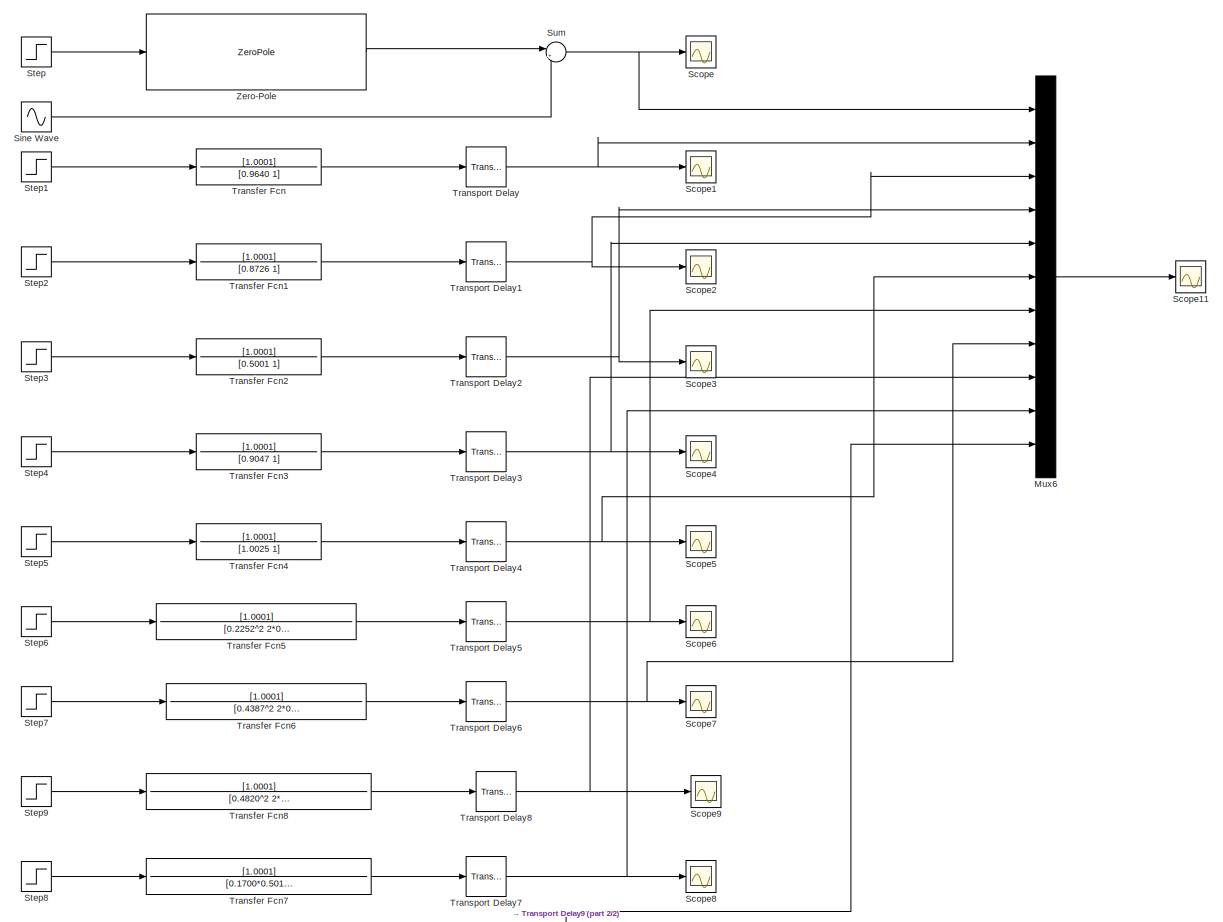
[diagram: root canvas - part 1/2, most of the canvas]
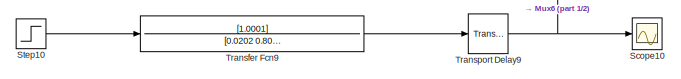
[diagram: root canvas - part 2/2, bottom left region]
MODEL slx_9406a60d7323
KIND model
CONFIG AbsTol = auto
CONFIG EnableMultiTasking = off
CONFIG FixedStep = auto
CONFIG MaxStep = auto
CONFIG MinStep = auto
CONFIG RelTol = 1e-3
CONFIG SampleTimeConstraint = Unconstrained
CONFIG SolverName = VariableStepAuto
CONFIG StartTime = 0.0
CONFIG StopTime = 20
BLOCK [Mux] Mux6
  DisplayOption = bar
  Inputs = 11
  Ports = [11, 1]
BLOCK [Scope] Scope
  Floating = off
  NumInputPorts = 1
  Ports = [1]
  ScopeSpecificationString = Simulink.scopes.TimeScopeBlockCfg('CurrentConfiguration', extmgr.ConfigurationSet(extmgr.Configuration('Core','General UI',true,'FigureColor',[1 1 1]),extmgr.Configuration('Core','Source UI',true),extmgr.Configuration('Sources','WiredSimulink',true,'DataLogging',true,'DataLoggingVariableName','Q1','DataLoggingLimitDataPoints',true,'DataLoggingDecimateData',true,'DataLoggingSaveFormat','Array'),ext...<+1722ch>
BLOCK [Scope] Scope1
  Floating = off
  NumInputPorts = 1
  Ports = [1]
  ScopeSpecificationString = Simulink.scopes.TimeScopeBlockCfg('CurrentConfiguration', extmgr.ConfigurationSet(extmgr.Configuration('Core','General UI',true,'FigureColor',[1 1 1]),extmgr.Configuration('Core','Source UI',true),extmgr.Configuration('Sources','WiredSimulink',true,'DataLogging',true,'DataLoggingVariableName','G1','DataLoggingLimitDataPoints',true,'DataLoggingDecimateData',true,'DataLoggingSaveFormat','Array'),ext...<+1724ch>
BLOCK [Scope] Scope10
  Floating = off
  NumInputPorts = 1
  Ports = [1]
  ScopeSpecificationString = Simulink.scopes.TimeScopeBlockCfg('CurrentConfiguration', extmgr.ConfigurationSet(extmgr.Configuration('Core','General UI',true,'FigureColor',[1 1 1]),extmgr.Configuration('Core','Source UI',true),extmgr.Configuration('Sources','WiredSimulink',true,'DataLogging',true,'DataLoggingVariableName','G10','DataLoggingLimitDataPoints',true,'DataLoggingDecimateData',true,'DataLoggingSaveFormat','Array'),ex...<+1772ch>
BLOCK [Scope] Scope11
  Floating = off
  NumInputPorts = 1
  Ports = [1]
  ScopeSpecificationString = Simulink.scopes.TimeScopeBlockCfg('CurrentConfiguration', extmgr.ConfigurationSet(extmgr.Configuration('Core','General UI',true,'FigureColor',[1 1 1]),extmgr.Configuration('Core','Source UI',true),extmgr.Configuration('Sources','WiredSimulink',true,'DataLoggingVariableName','ScopeData10','DataLoggingSaveFormat','Array'),extmgr.Configuration('Visuals','Time Domain',true,'SerializedDisplays',{struct...<+2009ch>
BLOCK [Scope] Scope2
  Floating = off
  NumInputPorts = 1
  Ports = [1]
  ScopeSpecificationString = Simulink.scopes.TimeScopeBlockCfg('CurrentConfiguration', extmgr.ConfigurationSet(extmgr.Configuration('Core','General UI',true,'FigureColor',[1 1 1]),extmgr.Configuration('Core','Source UI',true),extmgr.Configuration('Sources','WiredSimulink',true,'DataLogging',true,'DataLoggingVariableName','G2','DataLoggingLimitDataPoints',true,'DataLoggingDecimateData',true,'DataLoggingSaveFormat','Array'),ext...<+1723ch>
BLOCK [Scope] Scope3
  Floating = off
  NumInputPorts = 1
  Ports = [1]
  ScopeSpecificationString = Simulink.scopes.TimeScopeBlockCfg('CurrentConfiguration', extmgr.ConfigurationSet(extmgr.Configuration('Core','General UI',true,'FigureColor',[1 1 1]),extmgr.Configuration('Core','Source UI',true),extmgr.Configuration('Sources','WiredSimulink',true,'DataLogging',true,'DataLoggingVariableName','G3','DataLoggingLimitDataPoints',true,'DataLoggingDecimateData',true,'DataLoggingSaveFormat','Array'),ext...<+1772ch>
BLOCK [Scope] Scope4
  Floating = off
  NumInputPorts = 1
  Ports = [1]
  ScopeSpecificationString = Simulink.scopes.TimeScopeBlockCfg('CurrentConfiguration', extmgr.ConfigurationSet(extmgr.Configuration('Core','General UI',true,'FigureColor',[1 1 1]),extmgr.Configuration('Core','Source UI',true),extmgr.Configuration('Sources','WiredSimulink',true,'DataLogging',true,'DataLoggingVariableName','G4','DataLoggingLimitDataPoints',true,'DataLoggingDecimateData',true,'DataLoggingSaveFormat','Array'),ext...<+1724ch>
BLOCK [Scope] Scope5
  Floating = off
  NumInputPorts = 1
  Ports = [1]
  ScopeSpecificationString = Simulink.scopes.TimeScopeBlockCfg('CurrentConfiguration', extmgr.ConfigurationSet(extmgr.Configuration('Core','General UI',true,'FigureColor',[1 1 1]),extmgr.Configuration('Core','Source UI',true),extmgr.Configuration('Sources','WiredSimulink',true,'DataLogging',true,'DataLoggingVariableName','G5','DataLoggingLimitDataPoints',true,'DataLoggingDecimateData',true,'DataLoggingSaveFormat','Array'),ext...<+1721ch>
BLOCK [Scope] Scope6
  Floating = off
  NumInputPorts = 1
  Ports = [1]
  ScopeSpecificationString = Simulink.scopes.TimeScopeBlockCfg('CurrentConfiguration', extmgr.ConfigurationSet(extmgr.Configuration('Core','General UI',true,'FigureColor',[1 1 1]),extmgr.Configuration('Core','Source UI',true),extmgr.Configuration('Sources','WiredSimulink',true,'DataLogging',true,'DataLoggingVariableName','G6','DataLoggingLimitDataPoints',true,'DataLoggingDecimateData',true,'DataLoggingSaveFormat','Array'),ext...<+1753ch>
BLOCK [Scope] Scope7
  Floating = off
  NumInputPorts = 1
  Ports = [1]
  ScopeSpecificationString = Simulink.scopes.TimeScopeBlockCfg('CurrentConfiguration', extmgr.ConfigurationSet(extmgr.Configuration('Core','General UI',true,'FigureColor',[1 1 1]),extmgr.Configuration('Core','Source UI',true),extmgr.Configuration('Sources','WiredSimulink',true,'DataLogging',true,'DataLoggingVariableName','G7','DataLoggingLimitDataPoints',true,'DataLoggingDecimateData',true,'DataLoggingSaveFormat','Array'),ext...<+1721ch>
BLOCK [Scope] Scope8
  Floating = off
  NumInputPorts = 1
  Ports = [1]
  ScopeSpecificationString = Simulink.scopes.TimeScopeBlockCfg('CurrentConfiguration', extmgr.ConfigurationSet(extmgr.Configuration('Core','General UI',true,'FigureColor',[1 1 1]),extmgr.Configuration('Core','Source UI',true),extmgr.Configuration('Sources','WiredSimulink',true,'DataLogging',true,'DataLoggingVariableName','G9','DataLoggingLimitDataPoints',true,'DataLoggingDecimateData',true,'DataLoggingSaveFormat','Array'),ext...<+1770ch>
BLOCK [Scope] Scope9
  Floating = off
  NumInputPorts = 1
  Ports = [1]
  ScopeSpecificationString = Simulink.scopes.TimeScopeBlockCfg('CurrentConfiguration', extmgr.ConfigurationSet(extmgr.Configuration('Core','General UI',true,'FigureColor',[1 1 1]),extmgr.Configuration('Core','Source UI',true),extmgr.Configuration('Sources','WiredSimulink',true,'DataLogging',true,'DataLoggingVariableName','G8','DataLoggingLimitDataPoints',true,'DataLoggingDecimateData',true,'DataLoggingSaveFormat','Array'),ext...<+1721ch>
BLOCK [Sin] Sine Wave
  Amplitude = 0.05
  Frequency = 40
  Ports = [0, 1]
  SampleTime = 0
BLOCK [Step] Step
  SampleTime = 0
  Time = 0
BLOCK [Step] Step1
  SampleTime = 0
  Time = 0
BLOCK [Step] Step10
  SampleTime = 0
  Time = 0
BLOCK [Step] Step2
  SampleTime = 0
  Time = 0
BLOCK [Step] Step3
  SampleTime = 0
  Time = 0
BLOCK [Step] Step4
  SampleTime = 0
  Time = 0
BLOCK [Step] Step5
  SampleTime = 0
  Time = 0
BLOCK [Step] Step6
  SampleTime = 0
  Time = 0
BLOCK [Step] Step7
  SampleTime = 0
  Time = 0
BLOCK [Step] Step8
  SampleTime = 0
  Time = 0
BLOCK [Step] Step9
  SampleTime = 0
  Time = 0
BLOCK [Sum] Sum
  Inputs = |++
  Ports = [2, 1]
BLOCK [TransferFcn] Transfer Fcn
  Denominator = [0.9640 1]
  Numerator = [1.0001]
BLOCK [TransferFcn] Transfer Fcn1
  Denominator = [0.8726 1]
  Numerator = [1.0001]
BLOCK [TransferFcn] Transfer Fcn2
  Denominator = [0.5001 1]
  Numerator = [1.0001]
BLOCK [TransferFcn] Transfer Fcn3
  Denominator = [0.9047 1]
  Numerator = [1.0001]
BLOCK [TransferFcn] Transfer Fcn4
  Denominator = [1.0025 1]
  Numerator = [1.0001]
BLOCK [TransferFcn] Transfer Fcn5
  Denominator = [0.2252^2 2*0.2252 1]
  Numerator = [1.0001]
BLOCK [TransferFcn] Transfer Fcn6
  Denominator = [0.4387^2 2*0.4387 1]
  Numerator = [1.0001]
BLOCK [TransferFcn] Transfer Fcn7
  Denominator = [0.1700*0.5010  0.1700+0.5010 1]
  Numerator = [1.0001]
BLOCK [TransferFcn] Transfer Fcn8
  Denominator = [0.4820^2  2*0.4820 1]
  Numerator = [1.0001]
BLOCK [TransferFcn] Transfer Fcn9
  Denominator = [0.0202  0.8017 1]
  Numerator = [1.0001]
BLOCK [TransportDelay] Transport Delay
  DelayTime = 0.5120
  Ports = [1, 1]
BLOCK [TransportDelay] Transport Delay1
  DelayTime = 0.5120
  Ports = [1, 1]
BLOCK [TransportDelay] Transport Delay2
  DelayTime = 0.5120
  Ports = [1, 1]
BLOCK [TransportDelay] Transport Delay3
  DelayTime = 0.5120
  Ports = [1, 1]
BLOCK [TransportDelay] Transport Delay4
  DelayTime = 0.5120
  Ports = [1, 1]
BLOCK [TransportDelay] Transport Delay5
  DelayTime = 0.5120
  Ports = [1, 1]
BLOCK [TransportDelay] Transport Delay6
  DelayTime = 0.5120
  Ports = [1, 1]
BLOCK [TransportDelay] Transport Delay7
  DelayTime = 0.4262
  Ports = [1, 1]
BLOCK [TransportDelay] Transport Delay8
  DelayTime = 0.5120
  Ports = [1, 1]
BLOCK [TransportDelay] Transport Delay9
  DelayTime = 0.6744
  Ports = [1, 1]
BLOCK [ZeroPole] Zero-Pole
  Gain = [21]
  Poles = [-1  -3  -7]
  Zeros = []
LINE Mux6:1 -> Scope11:1
LINE Sine Wave:1 -> Sum:2
LINE Step10:1 -> Transfer Fcn9:1
LINE Step1:1 -> Transfer Fcn:1
LINE Step2:1 -> Transfer Fcn1:1
LINE Step3:1 -> Transfer Fcn2:1
LINE Step4:1 -> Transfer Fcn3:1
LINE Step5:1 -> Transfer Fcn4:1
LINE Step6:1 -> Transfer Fcn5:1
LINE Step7:1 -> Transfer Fcn6:1
LINE Step8:1 -> Transfer Fcn7:1
LINE Step9:1 -> Transfer Fcn8:1
LINE Step:1 -> Zero-Pole:1
NET Sum:1 -> Mux6:1, Scope:1
LINE Transfer Fcn1:1 -> Transport Delay1:1
LINE Transfer Fcn2:1 -> Transport Delay2:1
LINE Transfer Fcn3:1 -> Transport Delay3:1
LINE Transfer Fcn4:1 -> Transport Delay4:1
LINE Transfer Fcn5:1 -> Transport Delay5:1
LINE Transfer Fcn6:1 -> Transport Delay6:1
LINE Transfer Fcn7:1 -> Transport Delay7:1
LINE Transfer Fcn8:1 -> Transport Delay8:1
LINE Transfer Fcn9:1 -> Transport Delay9:1
LINE Transfer Fcn:1 -> Transport Delay:1
NET Transport Delay1:1 -> Mux6:3, Scope2:1
NET Transport Delay2:1 -> Mux6:4, Scope3:1
NET Transport Delay3:1 -> Mux6:5, Scope4:1
NET Transport Delay4:1 -> Mux6:6, Scope5:1
NET Transport Delay5:1 -> Mux6:7, Scope6:1
NET Transport Delay6:1 -> Mux6:8, Scope7:1
NET Transport Delay7:1 -> Mux6:10, Scope8:1
NET Transport Delay8:1 -> Mux6:9, Scope9:1
NET Transport Delay9:1 -> Mux6:11, Scope10:1
NET Transport Delay:1 -> Mux6:2, Scope1:1
LINE Zero-Pole:1 -> Sum:1
note: NET lines group one-source signal fan-out (src -> all destinations, sorted); 1:1 wires keep LINE
